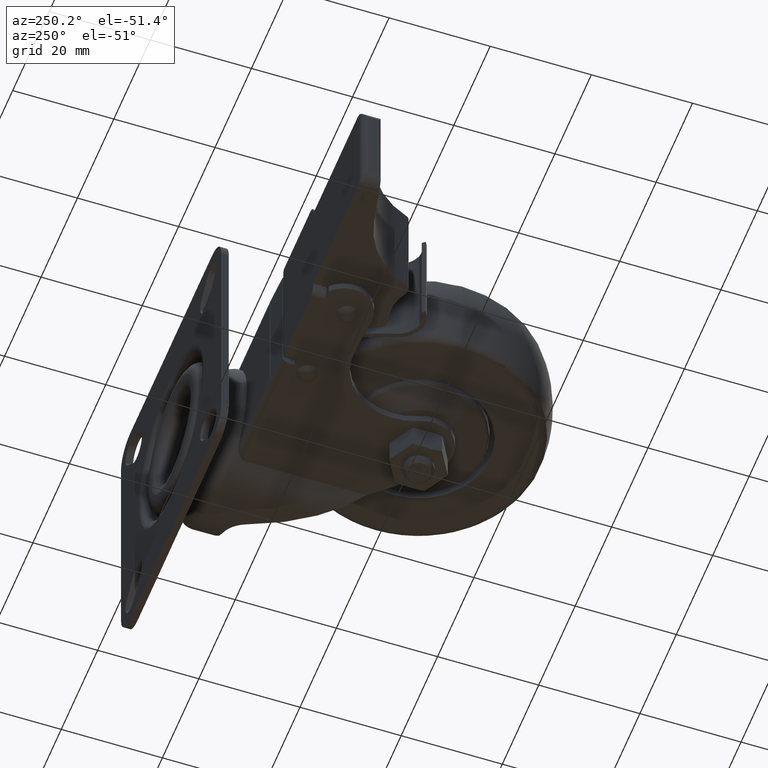
[diagram: clean part render]
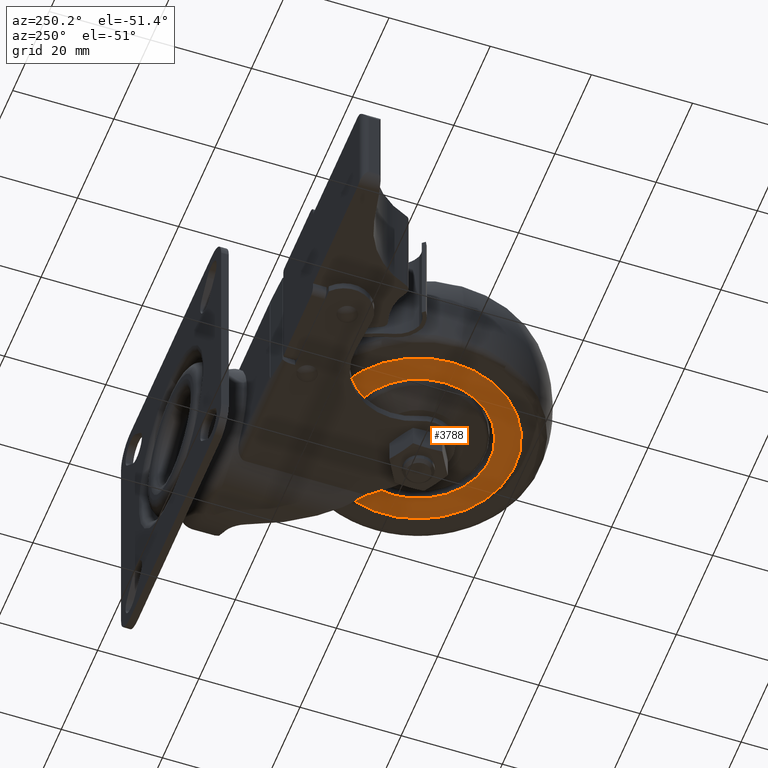
[diagram: same view with one face highlighted and labeled with its STEP entity id]
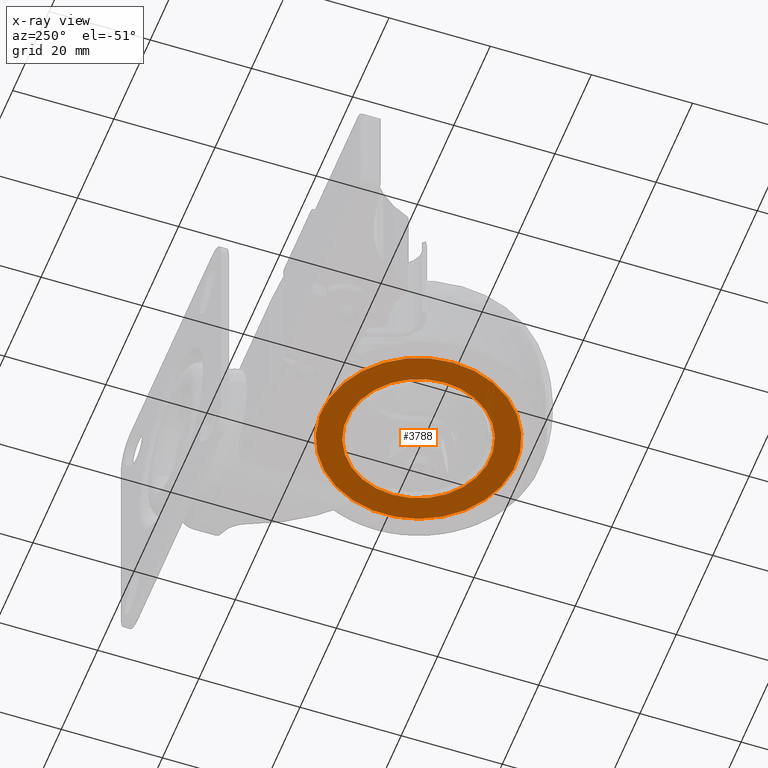
[diagram: x-ray of the same camera — body ghosted, the highlighted face saturated]
A machine part, auxiliary view. The second image highlights one B-rep face of the part: STEP entity #3788.
The next image is the same camera in x-ray: the body ghosted, the highlighted face saturated — about 0% of this face is hidden behind the body in this view.
In plain terms, the highlighted conical surface has half-angle 88.843 deg.
Its self-contained STEP definition (entity closure, byte-faithful):
#205=CONICAL_SURFACE('',#4462,19.15,1.5505970542);
#531=FACE_OUTER_BOUND('',#797,.T.);
#797=EDGE_LOOP('',(#3341,#3342,#3343,#3344));
#1068=LINE('',#6994,#1280);
#1280=VECTOR('',#5561,19.15);
#1509=CIRCLE('',#4461,19.15);
#1510=CIRCLE('',#4463,14.2);
#1849=VERTEX_POINT('',#6990);
#1850=VERTEX_POINT('',#6993);
#2352=EDGE_CURVE('',#1849,#1849,#1509,.T.);
#2353=EDGE_CURVE('',#1849,#1850,#1068,.T.);
#2354=EDGE_CURVE('',#1850,#1850,#1510,.T.);
#3341=ORIENTED_EDGE('',*,*,#2352,.F.);
#3342=ORIENTED_EDGE('',*,*,#2353,.T.);
#3343=ORIENTED_EDGE('',*,*,#2354,.T.);
#3344=ORIENTED_EDGE('',*,*,#2353,.F.);
#3788=ADVANCED_FACE('',(#531),#205,.T.);
#4461=AXIS2_PLACEMENT_3D('',#6991,#5557,#5558);
#4462=AXIS2_PLACEMENT_3D('',#6992,#5559,#5560);
#4463=AXIS2_PLACEMENT_3D('',#6995,#5562,#5563);
#5557=DIRECTION('center_axis',(1.,0.,0.));
#5558=DIRECTION('ref_axis',(0.,0.,-1.));
#5559=DIRECTION('center_axis',(1.,0.,0.));
#5560=DIRECTION('ref_axis',(0.,0.,-1.));
#5561=DIRECTION('',(-0.0201978990366514,1.22439697319599E-16,-0.999796001629585));
#5562=DIRECTION('center_axis',(1.,0.,0.));
#5563=DIRECTION('ref_axis',(0.,0.,-1.));
#6990=CARTESIAN_POINT('',(1.5,-2.34519862036718E-15,19.15));
#6991=CARTESIAN_POINT('Origin',(1.5,0.,0.));
#6992=CARTESIAN_POINT('Origin',(1.5,0.,0.));
#6993=CARTESIAN_POINT('',(1.39999999993155,-1.73899845478941E-15,14.2000000000014));
#6994=CARTESIAN_POINT('',(1.5,-2.34519862036718E-15,19.15));
#6995=CARTESIAN_POINT('Origin',(1.39999999999986,0.,0.));